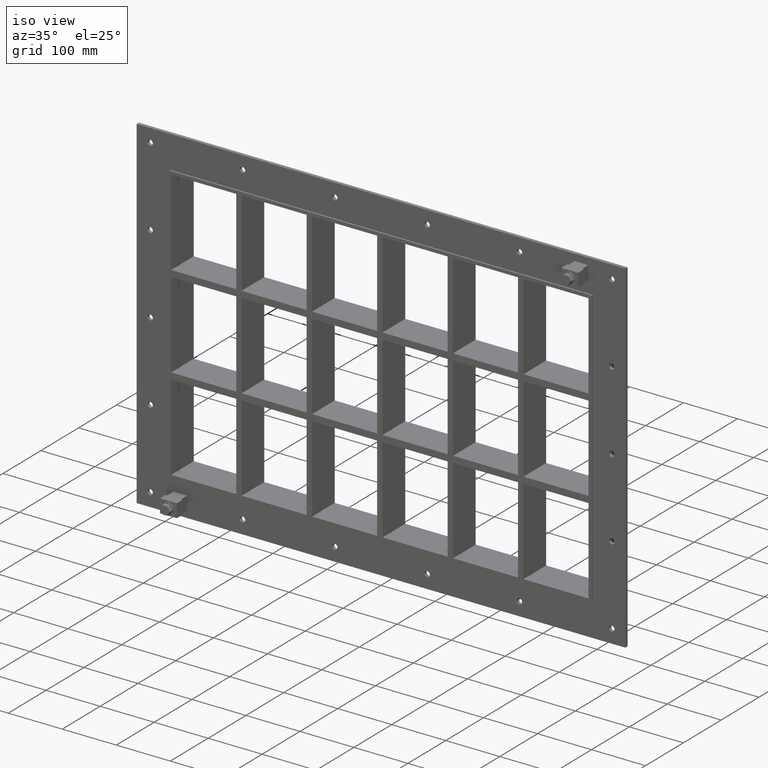
[diagram: clean part render]
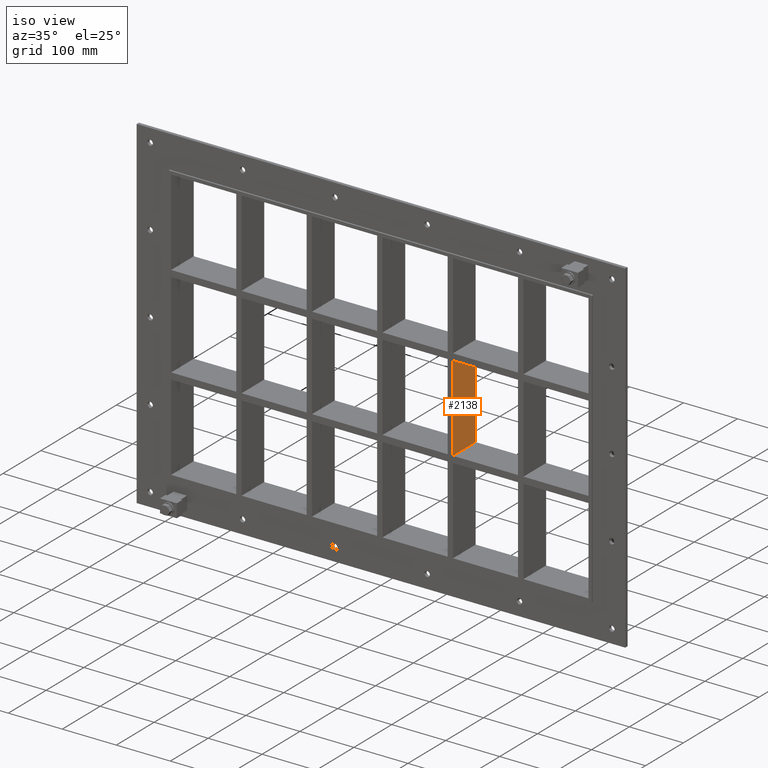
[diagram: same view with one face highlighted and labeled with its STEP entity id]
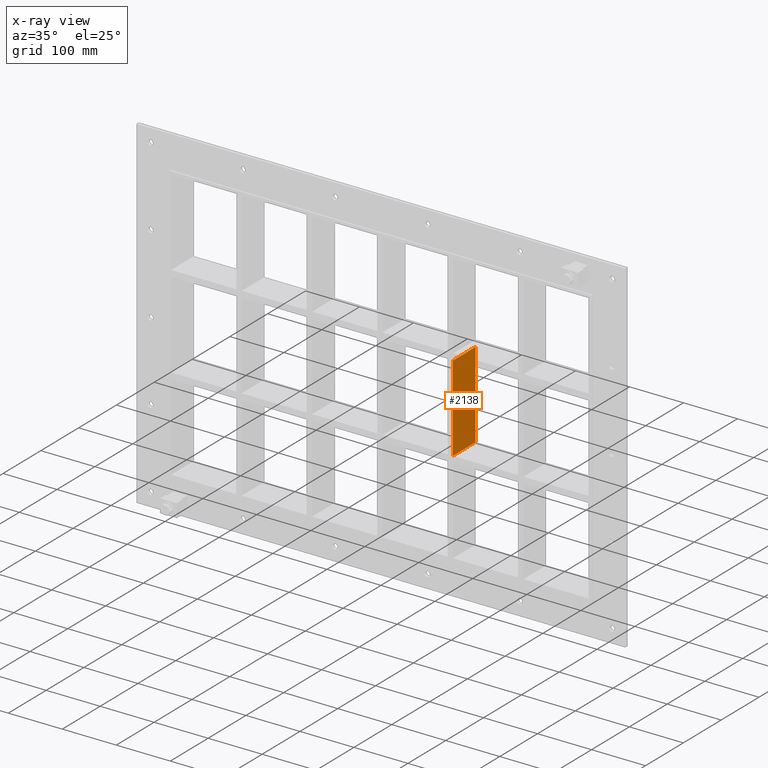
[diagram: x-ray of the same camera — body ghosted, the highlighted face saturated]
A machine part, iso view. The second image highlights one B-rep face of the part: STEP entity #2138.
The next image is the same camera in x-ray: the body ghosted, the highlighted face saturated — about 0% of this face is hidden behind the body in this view.
In plain terms, the highlighted planar face has unit normal (1, 0, 0).
Its self-contained STEP definition (entity closure, byte-faithful):
#787=CARTESIAN_POINT('',(135.49999999999642,-3.0,79.749999999989129));
#788=VERTEX_POINT('',#787);
#795=CARTESIAN_POINT('',(135.49999999999642,57.0,79.749999999989129));
#796=VERTEX_POINT('',#795);
#797=CARTESIAN_POINT('',(135.49999999999642,57.0,79.749999999989129));
#798=DIRECTION('',(0.0,-1.0,0.0));
#799=VECTOR('',#798,60.0);
#800=LINE('',#797,#799);
#801=EDGE_CURVE('',#796,#788,#800,.T.);
#1635=CARTESIAN_POINT('',(135.49999999999642,57.0,-79.750000000000227));
#1636=VERTEX_POINT('',#1635);
#1637=CARTESIAN_POINT('',(135.49999999999642,57.0,79.749999999989143));
#1638=DIRECTION('',(0.0,0.0,-1.0));
#1639=VECTOR('',#1638,159.49999999998937);
#1640=LINE('',#1637,#1639);
#1641=EDGE_CURVE('',#796,#1636,#1640,.T.);
#2115=CARTESIAN_POINT('',(135.49999999999642,-3.0,251.25));
#2116=DIRECTION('',(1.0,0.0,0.0));
#2117=DIRECTION('',(0.0,0.0,-1.0));
#2118=AXIS2_PLACEMENT_3D('',#2115,#2116,#2117);
#2119=PLANE('',#2118);
#2120=ORIENTED_EDGE('',*,*,#801,.T.);
#2121=CARTESIAN_POINT('',(135.49999999999642,-3.0,-79.750000000000227));
#2122=VERTEX_POINT('',#2121);
#2123=CARTESIAN_POINT('',(135.49999999999642,-3.0,79.749999999989143));
#2124=DIRECTION('',(0.0,0.0,-1.0));
#2125=VECTOR('',#2124,159.49999999998937);
#2126=LINE('',#2123,#2125);
#2127=EDGE_CURVE('',#788,#2122,#2126,.T.);
#2128=ORIENTED_EDGE('',*,*,#2127,.T.);
#2129=CARTESIAN_POINT('',(135.49999999999642,57.0,-79.750000000000227));
#2130=DIRECTION('',(0.0,-1.0,0.0));
#2131=VECTOR('',#2130,60.0);
#2132=LINE('',#2129,#2131);
#2133=EDGE_CURVE('',#1636,#2122,#2132,.T.);
#2134=ORIENTED_EDGE('',*,*,#2133,.F.);
#2135=ORIENTED_EDGE('',*,*,#1641,.F.);
#2136=EDGE_LOOP('',(#2120,#2128,#2134,#2135));
#2137=FACE_OUTER_BOUND('',#2136,.T.);
#2138=ADVANCED_FACE('',(#2137),#2119,.T.);